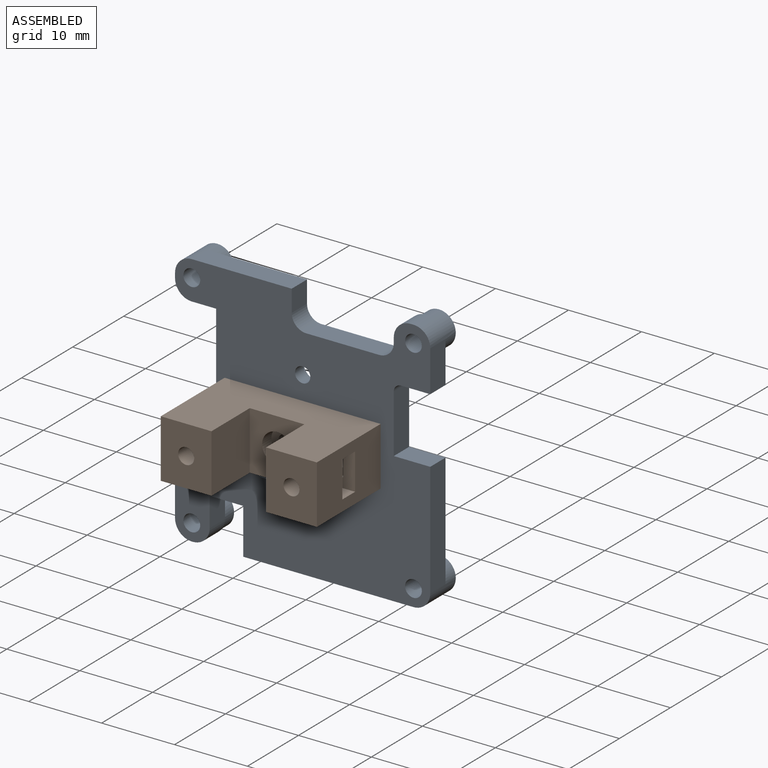
[diagram: assembled view]
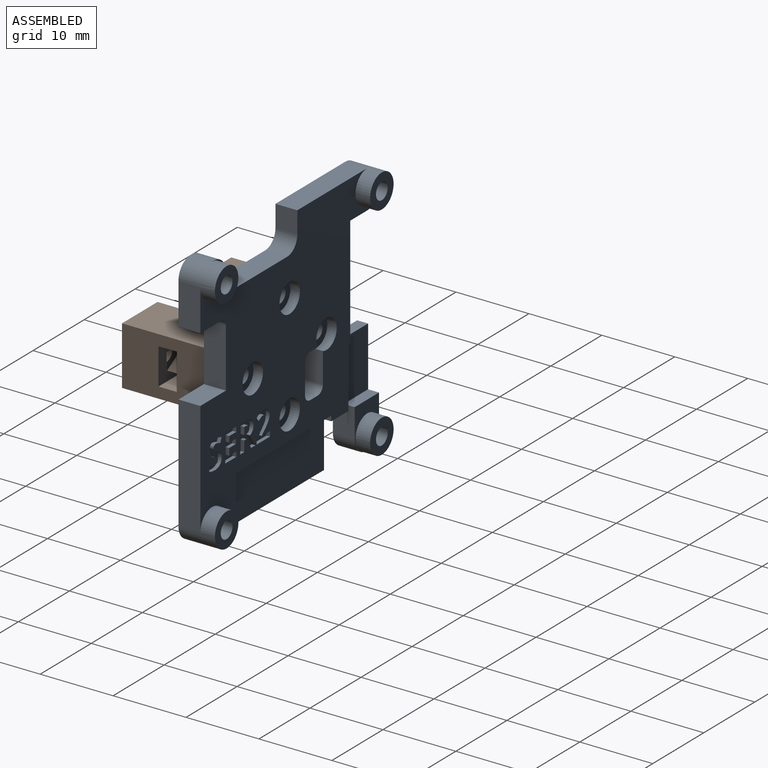
[diagram: assembled view, second angle]
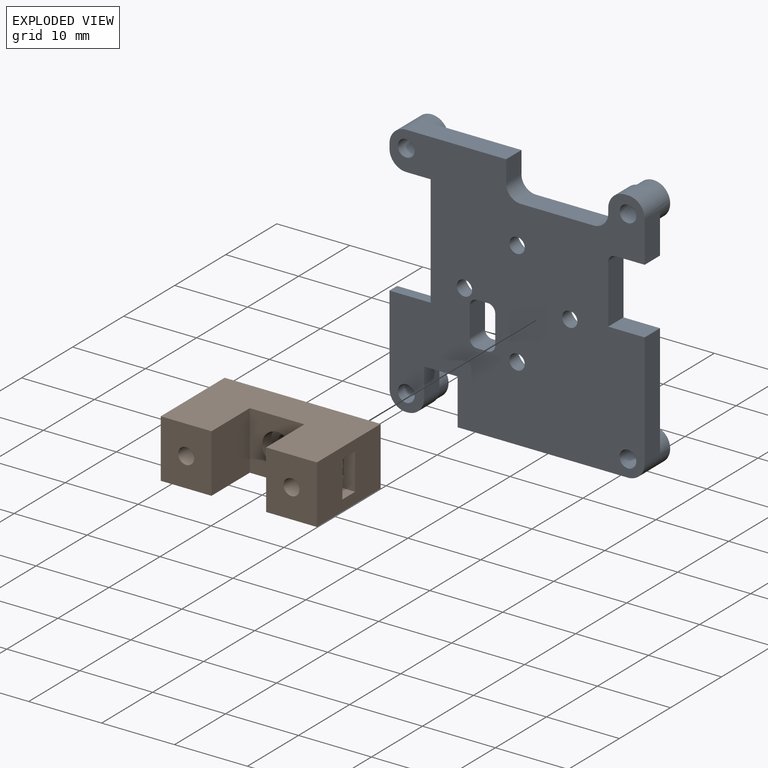
[diagram: exploded view]
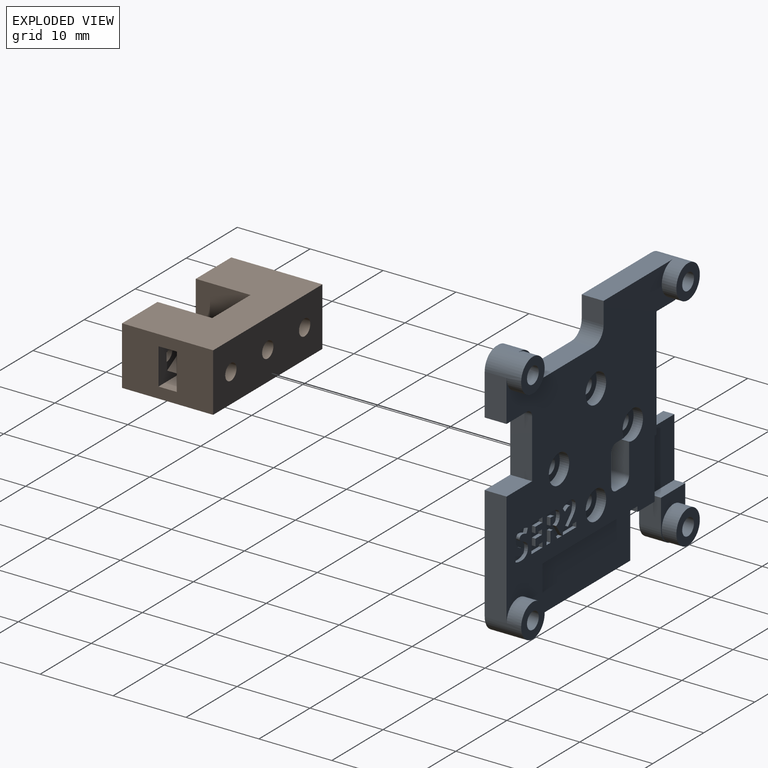
[diagram: exploded view, second angle]
ASSEMBLY  parts=2 mates=3
PART A: 157 faces, bbox 35x5x35 mm
  f0: plane 35x35mm, normal (0,1,0), area 637.7mm2, adj f1,f2,f6,f11,f12,f13,f14,f15
  f1: plane 5.7x3mm, normal (1,0,0), area 17.1mm2, adj f0,f3,f18,f53
  f2: plane 13.7x3mm, normal (0,0,1), area 41.1mm2, adj f0,f3,f20,f57
  f3: plane 35x35mm, normal (0,-1,0), area 938.1mm2, adj f1,f2,f5,f6,f7,f8,f9,f10
  f4: plane 6.3x4.75mm, normal (0,1,0), area 11mm2, adj f5,f8,f9,f27,f41,f64
  f5: plane 12.15x3mm, normal (-1,0,0), area 24.2mm2, adj f3,f4,f7,f27,f41,f42
  f6: plane 4.6x3mm, normal (0,0,-1), area 11.9mm2, adj f0,f3,f9,f10,f42,f44,f46
  f7: plane 5.64x1.5mm, normal (0,0,1), area 8.5mm2, adj f3,f5,f16,f42
  f8: plane 3x0.15mm, normal (0,0,-1), area 0.5mm2, adj f3,f4,f27,f64
  f9: plane 4x3mm, normal (1,0,0), area 12mm2, adj f3,f4,f6,f41,f64
  f10: plane 6.3x2mm, normal (-1,0,0), area 12.6mm2, adj f3,f6,f11,f45
  f11: plane 23.35x3mm, normal (0,0,-1), area 51.4mm2, adj f0,f3,f10,f23,f45,f47
  f12: plane 15.7x3mm, normal (1,0,0), area 47.1mm2, adj f0,f3,f23,f55
  f13: plane 3x0.4mm, normal (0,0,1), area 1.2mm2, adj f0,f3,f18,f62
  f14: plane 3x0.65mm, normal (-1,0,0), area 1.9mm2, adj f0,f3,f20,f63
  f15: plane 3.34x3mm, normal (0,0,-1), area 10mm2, adj f0,f3,f16,f63
  f16: plane 15.3x3mm, normal (-1,0,0), area 45.9mm2, adj f0,f3,f7,f15,f43
  f17: cylinder r=1.15mm len=5mm, axis (0,-1,0), area 36.1mm2, adj f3,f19
  f18: cylinder r=2.3mm len=5mm, axis (0,-1,0), area 39.7mm2, adj f0,f1,f3,f13,f19
  f19: plane 4.6x4.6mm, normal (0,1,0), area 12.5mm2, adj f17,f18
  f20: cylinder r=2.3mm len=5mm, axis (0,-1,0), area 39.7mm2, adj f0,f2,f3,f14,f22
  f21: cylinder r=1.15mm len=5mm, axis (0,-1,0), area 36.1mm2, adj f3,f22
  f22: plane 4.6x4.6mm, normal (0,1,0), area 12.5mm2, adj f20,f21
  f23: cylinder r=2.3mm len=5mm, axis (0,-1,0), area 39.7mm2, adj f0,f3,f11,f12,f25
  f24: cylinder r=1.15mm len=5mm, axis (0,-1,0), area 36.1mm2, adj f3,f25
  f25: plane 4.6x4.6mm, normal (0,1,0), area 12.5mm2, adj f23,f24
  f26: cylinder r=1.15mm len=5mm, axis (0,-1,0), area 36.1mm2, adj f3,f28
  f27: cylinder r=2.3mm len=5mm, axis (0,-1,0), area 39.7mm2, adj f3,f4,f5,f8,f28
  f28: plane 4.6x4.6mm, normal (0,1,0), area 12.5mm2, adj f26,f27
  f29: cylinder r=1.05mm len=2.1mm, axis (0,-1,0), area 11.2mm2, adj f3,f40
  f30: cylinder r=1.05mm len=2.1mm, axis (0,-1,0), area 11.2mm2, adj f3,f37
  f31: cylinder r=1.05mm len=2.1mm, axis (0,-1,0), area 11.2mm2, adj f3,f36
  f32: cylinder r=1.05mm len=2.1mm, axis (0,-1,0), area 11.2mm2, adj f3,f33
  f33: plane 4x4mm, normal (0,1,0), area 9.1mm2, adj f32,f34
  f34: cylinder r=2mm len=4mm, axis (0,1,0), area 16.3mm2, adj f0,f33
  f35: cylinder r=2mm len=4mm, axis (0,1,0), area 16.3mm2, adj f0,f36
  f36: plane 4x4mm, normal (0,1,0), area 9.1mm2, adj f31,f35
  f37: plane 4x4mm, normal (0,1,0), area 8.8mm2, adj f30,f38,f49,f65
  f38: cylinder r=2mm len=4mm, axis (0,1,0), area 14.6mm2, adj f0,f37,f49,f65
  f39: cylinder r=2mm len=4mm, axis (0,1,0), area 16.3mm2, adj f0,f40
  f40: plane 4x4mm, normal (0,1,0), area 9.1mm2, adj f29,f39
  f41: plane 4.75x1.5mm, normal (0,0,1), area 7.1mm2, adj f4,f5,f9,f42
  f42: plane 8.15x6mm, normal (0,1,0), area 48.9mm2, adj f5,f6,f7,f41,f43,f44
  f43: plane 1.5x0.36mm, normal (0,0,-1), area 0.5mm2, adj f0,f16,f42,f44
  f44: plane 8.15x1.5mm, normal (-1,0,0), area 12.2mm2, adj f0,f6,f42,f43
  f45: plane 18.65x7mm, normal (0,1,0), area 130.6mm2, adj f10,f11,f46,f47,f48
  f46: plane 1x0.7mm, normal (1,0,0), area 0.7mm2, adj f0,f6,f45,f48
  f47: plane 7x1mm, normal (-1,0,0), area 7mm2, adj f0,f11,f45,f48
  f48: plane 18.65x1mm, normal (0,0,-1), area 18.6mm2, adj f0,f45,f46,f47
  f49: plane 3x1.5mm, normal (0,0,-1), area 4.5mm2, adj f0,f3,f37,f38,f65,f68
  f50: plane 4x3mm, normal (1,0,0), area 12mm2, adj f0,f3,f65,f66
  f51: plane 3x1.5mm, normal (0,0,1), area 4.5mm2, adj f0,f3,f66,f67
  f52: plane 4x3mm, normal (-1,0,0), area 12mm2, adj f0,f3,f67,f68
  f53: plane 4x3mm, normal (0,0,-1), area 12mm2, adj f0,f1,f3,f59
  f54: plane 8x3mm, normal (1,0,0), area 24mm2, adj f0,f3,f55,f59
  f55: plane 5x3mm, normal (0,0,1), area 15mm2, adj f0,f3,f12,f54
  f56: plane 3x0.7mm, normal (-1,0,0), area 2.1mm2, adj f0,f3,f61,f62
  f57: plane 3x3mm, normal (1,0,0), area 9mm2, adj f0,f2,f3,f60
  f58: plane 10x3mm, normal (0,0,1), area 30mm2, adj f0,f3,f60,f61
  f59: cylinder r=1mm len=3mm, axis (0,-1,0), area 4.7mm2, adj f0,f3,f53,f54
  f60: cylinder r=2mm len=3mm, axis (0,1,0), area 9.4mm2, adj f0,f3,f57,f58
  f61: cylinder r=2mm len=3mm, axis (0,-1,0), area 9.4mm2, adj f0,f3,f56,f58
  f62: cylinder r=2.3mm len=3mm, axis (0,-1,0), area 10.8mm2, adj f0,f3,f13,f56
  f63: cylinder r=2.3mm len=3mm, axis (0,1,0), area 10.8mm2, adj f0,f3,f14,f15
  f64: cylinder r=2.3mm len=3mm, axis (0,1,0), area 10.8mm2, adj f3,f4,f8,f9
  f65: cylinder r=1mm len=3mm, axis (0,1,0), area 2.9mm2, adj f0,f3,f37,f38,f49,f50
  f66: cylinder r=1mm len=3mm, axis (0,-1,0), area 4.7mm2, adj f0,f3,f50,f51
  f67: cylinder r=1mm len=3mm, axis (0,1,0), area 4.7mm2, adj f0,f3,f51,f52
  f68: cylinder r=1mm len=3mm, axis (0,-1,0), area 4.7mm2, adj f0,f3,f49,f52
  f69: plane 2.16x0.5mm, normal (0,0,1), area 1.1mm2, adj f0,f70,f80,f81
  f70: plane 0.66x0.5mm, normal (1,0,0), area 0.3mm2, adj f0,f69,f71,f81
  f71: plane 1.37x0.5mm, normal (0,0,-1), area 0.7mm2, adj f0,f70,f72,f81
  f72: plane 0.97x0.5mm, normal (1,0,0), area 0.5mm2, adj f0,f71,f73,f81
  f73: plane 1.27x0.5mm, normal (0,0,1), area 0.6mm2, adj f0,f72,f74,f81
  f74: plane 0.65x0.5mm, normal (1,0,0), area 0.3mm2, adj f0,f73,f75,f81
  f75: plane 1.27x0.5mm, normal (0,0,-1), area 0.6mm2, adj f0,f74,f76,f81
  f76: plane 0.83x0.5mm, normal (1,0,0), area 0.4mm2, adj f0,f75,f77,f81
  f77: plane 1.37x0.5mm, normal (0,0,1), area 0.7mm2, adj f0,f76,f78,f81
  f78: plane 0.65x0.5mm, normal (1,0,0), area 0.3mm2, adj f0,f77,f79,f81
  f79: plane 2.16x0.5mm, normal (0,0,-1), area 1.1mm2, adj f0,f78,f80,f81
  f80: plane 3.76x0.5mm, normal (-1,0,0), area 1.9mm2, adj f0,f69,f79,f81
  f81: plane 3.76x2.16mm, normal (0,1,0), area 5.6mm2, adj f69,f70,f71,f72,f73,f74,f75,f76
  f82: plane 2.63x0.5mm, normal (0,0,1), area 1.3mm2, adj f0,f83,f105,f106
  f83: plane 0.67x0.5mm, normal (1,0,0), area 0.3mm2, adj f0,f82,f84,f106
  f84: plane 1.64x0.5mm, normal (0,0,-1), area 0.8mm2, adj f0,f83,f85,f106
  f85: plane 0.5x0.04mm, normal (1,0,0), area 0mm2, adj f0,f84,f86,f106
  f86: plane 0.5x0.48mm, normal (0.69,0,0.73), area 0.3mm2, adj f0,f85,f87,f106
  f87: extruded ~0.68x0.67mm, area 0.5mm2, adj f0,f86,f88,f106
  f88: extruded ~0.5x0.47mm, area 0.3mm2, adj f0,f87,f89,f106
  f89: extruded ~0.5x0.49mm, area 0.2mm2, adj f0,f88,f90,f106
  f90: extruded ~0.53x0.5mm, area 0.3mm2, adj f0,f89,f91,f106
  f91: extruded ~0.5x0.42mm, area 0.3mm2, adj f0,f90,f92,f106
  f92: extruded ~0.62x0.5mm, area 0.3mm2, adj f0,f91,f93,f106
  f93: extruded ~0.5x0.48mm, area 0.2mm2, adj f0,f92,f94,f106
  f94: extruded ~0.5x0.4mm, area 0.2mm2, adj f0,f93,f95,f106
  f95: extruded ~0.5x0.46mm, area 0.3mm2, adj f0,f94,f96,f106
  f96: plane 0.51x0.5mm, normal (-0.76,0,0.65), area 0.3mm2, adj f0,f95,f97,f106
  f97: extruded ~0.5x0.43mm, area 0.3mm2, adj f0,f96,f98,f106
  f98: extruded ~0.5x0.42mm, area 0.2mm2, adj f0,f97,f99,f106
  f99: extruded ~0.5x0.33mm, area 0.2mm2, adj f0,f98,f100,f106
  f100: extruded ~0.5x0.34mm, area 0.2mm2, adj f0,f99,f101,f106
  f101: extruded ~0.5x0.29mm, area 0.2mm2, adj f0,f100,f102,f106
  f102: extruded ~0.5x0.31mm, area 0.2mm2, adj f0,f101,f103,f106
  f103: extruded ~0.6x0.55mm, area 0.4mm2, adj f0,f102,f104,f106
  f104: plane 0.95x0.94mm, normal (-0.71,0,-0.7), area 0.7mm2, adj f0,f103,f105,f106
  f105: plane 0.55x0.5mm, normal (-1,0,0), area 0.3mm2, adj f0,f82,f104,f106
  f106: plane 3.81x2.64mm, normal (0,1,0), area 5.3mm2, adj f82,f83,f84,f85,f86,f87,f88,f89
  f107: plane 1.44x0.5mm, normal (1,0,0), area 0.7mm2, adj f0,f108,f125,f126
  f108: plane 0.5x0.42mm, normal (0,0,1), area 0.2mm2, adj f0,f107,f109,f126
  f109: plane 1.44x0.9mm, normal (-0.85,0,0.53), area 0.8mm2, adj f0,f108,f110,f126
  f110: plane 0.88x0.5mm, normal (0,0,1), area 0.4mm2, adj f0,f109,f111,f126
  f111: plane 1.64x1.11mm, normal (0.83,0,-0.56), area 1mm2, adj f0,f110,f112,f126
  f112: extruded ~0.52x0.5mm, area 0.3mm2, adj f0,f111,f113,f126
  f113: extruded ~0.59x0.5mm, area 0.3mm2, adj f0,f112,f114,f126
  f114: extruded ~0.85x0.5mm, area 0.5mm2, adj f0,f113,f115,f126
  f115: extruded ~1.13x0.5mm, area 0.6mm2, adj f0,f114,f116,f126
  f116: plane 1.09x0.5mm, normal (0,0,-1), area 0.5mm2, adj f0,f115,f117,f126
  f117: plane 3.76x0.5mm, normal (-1,0,0), area 1.9mm2, adj f0,f116,f125,f126
  f118: plane 0.5x0.26mm, normal (0,0,-1), area 0.1mm2, adj f119,f124,f126,f127
  f119: plane 1.02x0.5mm, normal (1,0,0), area 0.5mm2, adj f118,f120,f126,f127
  f120: plane 0.5x0.24mm, normal (0,0,1), area 0.1mm2, adj f119,f121,f126,f127
  f121: extruded ~0.57x0.5mm, area 0.3mm2, adj f120,f122,f126,f127
  f122: extruded ~0.5x0.38mm, area 0.2mm2, adj f121,f123,f126,f127
  f123: extruded ~0.5x0.4mm, area 0.2mm2, adj f122,f124,f126,f127
  f124: extruded ~0.56x0.5mm, area 0.3mm2, adj f118,f123,f126,f127
  f125: plane 0.8x0.5mm, normal (0,0,1), area 0.4mm2, adj f0,f107,f117,f126
  f126: plane 3.76x3mm, normal (0,1,0), area 6.9mm2, adj f107,f108,f109,f110,f111,f112,f113,f114
  f127: plane 1.02x0.99mm, normal (0,1,0), area 0.9mm2, adj f118,f119,f120,f121,f122,f123,f124
  f128: extruded ~0.8x0.5mm, area 0.5mm2, adj f0,f129,f155,f156
  f129: extruded ~0.62x0.5mm, area 0.3mm2, adj f0,f128,f130,f156
  f130: extruded ~0.72x0.51mm, area 0.4mm2, adj f0,f129,f131,f156
  f131: extruded ~0.5x0.5mm, area 0.3mm2, adj f0,f130,f132,f156
  f132: extruded ~0.5x0.16mm, area 0.1mm2, adj f0,f131,f133,f156
  f133: extruded ~0.5x0.18mm, area 0.1mm2, adj f0,f132,f134,f156
  f134: extruded ~0.5x0.27mm, area 0.2mm2, adj f0,f133,f135,f156
  f135: extruded ~0.5x0.35mm, area 0.2mm2, adj f0,f134,f136,f156
  f136: extruded ~0.5x0.39mm, area 0.2mm2, adj f0,f135,f137,f156
  f137: extruded ~0.5x0.5mm, area 0.3mm2, adj f0,f136,f138,f156
  f138: plane 0.62x0.5mm, normal (0.92,0,0.38), area 0.3mm2, adj f0,f137,f139,f156
  f139: extruded ~0.56x0.5mm, area 0.3mm2, adj f0,f138,f140,f156
  f140: extruded ~0.56x0.5mm, area 0.3mm2, adj f0,f139,f141,f156
  f141: extruded ~0.93x0.5mm, area 0.5mm2, adj f0,f140,f142,f156
  f142: extruded ~0.78x0.5mm, area 0.4mm2, adj f0,f141,f143,f156
  f143: extruded ~0.5x0.46mm, area 0.2mm2, adj f0,f142,f144,f156
  f144: extruded ~0.5x0.35mm, area 0.2mm2, adj f0,f143,f145,f156
  f145: extruded ~0.52x0.5mm, area 0.3mm2, adj f0,f144,f146,f156
  f146: extruded ~0.5x0.49mm, area 0.3mm2, adj f0,f145,f147,f156
  f147: extruded ~0.5x0.18mm, area 0.1mm2, adj f0,f146,f148,f156
  f148: extruded ~0.5x0.2mm, area 0.1mm2, adj f0,f147,f149,f156
  f149: extruded ~0.5x0.3mm, area 0.2mm2, adj f0,f148,f150,f156
  f150: extruded ~0.5x0.4mm, area 0.2mm2, adj f0,f149,f151,f156
  f151: extruded ~0.5x0.48mm, area 0.2mm2, adj f0,f150,f152,f156
  f152: extruded ~0.64x0.5mm, area 0.3mm2, adj f0,f151,f153,f156
  f153: plane 0.74x0.5mm, normal (-1,0,0), area 0.4mm2, adj f0,f152,f154,f156
  f154: extruded ~1.06x0.5mm, area 0.5mm2, adj f0,f153,f155,f156
  f155: extruded ~1.02x0.5mm, area 0.5mm2, adj f0,f128,f154,f156
  f156: plane 3.86x2.45mm, normal (0,1,0), area 5.3mm2, adj f128,f129,f130,f131,f132,f133,f134,f135
PART B: 51 faces, bbox 12.5x8x21.4 mm
  f0: cylinder r=1.1mm len=3.2mm, axis (1,0,0), area 22.1mm2, adj f9,f49
  f1: cylinder r=1.1mm len=3.7mm, axis (1,0,0), area 25.6mm2, adj f9,f42
  f2: cylinder r=1.1mm len=3.7mm, axis (1,0,0), area 25.6mm2, adj f9,f48
  f3: plane 5.45x5mm, normal (1,0,0), area 14.5mm2, adj f24,f32,f34,f35,f37,f38,f39,f40
  f4: plane 1.92x1.3mm, normal (0,0.87,0.5), area 2.9mm2, adj f5,f8,f33,f36
  f5: plane 2.21x1.3mm, normal (0,0,1), area 2.9mm2, adj f4,f6,f33,f36
  f6: plane 1.92x1.3mm, normal (0,-0.87,0.5), area 2.9mm2, adj f5,f7,f33,f36
  f7: plane 1.92x1.3mm, normal (0,-0.87,-0.5), area 2.9mm2, adj f6,f32,f33,f36
  f8: plane 1.92x1.3mm, normal (0,0.87,-0.5), area 2.9mm2, adj f4,f32,f33,f36
  f9: plane 21.4x8mm, normal (-1,0,0), area 159.8mm2, adj f0,f1,f2,f21,f24,f28,f29
  f10: plane 1.92x1.3mm, normal (0,-0.87,0.5), area 2.9mm2, adj f11,f15,f16,f17
  f11: plane 1.92x1.3mm, normal (0,-0.87,-0.5), area 2.9mm2, adj f10,f12,f16,f17
  f12: plane 2.21x1.3mm, normal (0,0,-1), area 2.9mm2, adj f11,f13,f16,f17
  f13: plane 1.92x1.3mm, normal (0,0.87,-0.5), area 2.9mm2, adj f12,f14,f16,f17
  f14: plane 1.92x1.3mm, normal (0,0.87,0.5), area 2.9mm2, adj f13,f15,f16,f17
  f15: plane 5.1x5mm, normal (0,0,1), area 18.2mm2, adj f10,f14,f16,f17,f18,f19,f20,f43
  f16: plane 4.42x3.83mm, normal (-1,0,0), area 8.9mm2, adj f10,f11,f12,f13,f14,f15,f31
  f17: plane 5.45x5mm, normal (-1,0,0), area 14.5mm2, adj f10,f11,f12,f13,f14,f15,f18,f20
  f18: plane 5.45x2.5mm, normal (0,-1,0), area 13.6mm2, adj f15,f17,f19,f21
  f19: plane 5.45x5mm, normal (1,0,0), area 14.5mm2, adj f15,f18,f20,f21,f43,f44,f45,f46
  f20: plane 5.45x2.5mm, normal (0,1,0), area 13.6mm2, adj f15,f17,f19,f21
  f21: plane 12.5x8mm, normal (0,0,1), area 87.5mm2, adj f9,f17,f18,f19,f20,f23,f28,f29
  f22: plane 8x7.5mm, normal (0,0,-1), area 60mm2, adj f23,f27,f28,f29
  f23: plane 8x6.95mm, normal (1,0,0), area 51.8mm2, adj f21,f22,f28,f29,f31
  f24: plane 12.5x8mm, normal (0,0,-1), area 87.5mm2, adj f3,f9,f25,f28,f29,f34,f35,f36
  f25: plane 8x6.95mm, normal (1,0,0), area 51.8mm2, adj f24,f26,f28,f29,f30
  f26: plane 8x7.5mm, normal (0,0,1), area 60mm2, adj f25,f27,f28,f29
  f27: plane 8x7.5mm, normal (1,0,0), area 46.8mm2, adj f22,f26,f28,f29,f50
  f28: plane 21.4x12.5mm, normal (0,-1,0), area 211.2mm2, adj f9,f21,f22,f23,f24,f25,f26,f27
  f29: plane 21.4x12.5mm, normal (0,1,0), area 211.3mm2, adj f9,f21,f22,f23,f24,f25,f26,f27
  f30: cylinder r=1.1mm len=3.7mm, axis (1,0,0), area 25.6mm2, adj f25,f33
  f31: cylinder r=1.1mm len=3.7mm, axis (1,0,0), area 25.6mm2, adj f16,f23
  f32: plane 5.1x5mm, normal (0,0,-1), area 18.2mm2, adj f3,f7,f8,f33,f34,f35,f36,f40
  f33: plane 4.42x3.83mm, normal (-1,0,0), area 8.9mm2, adj f4,f5,f6,f7,f8,f30,f32
  f34: plane 5.45x2.5mm, normal (0,1,0), area 13.6mm2, adj f3,f24,f32,f36
  f35: plane 5.45x2.5mm, normal (0,-1,0), area 13.6mm2, adj f3,f24,f32,f36
  f36: plane 5.45x5mm, normal (-1,0,0), area 14.5mm2, adj f4,f5,f6,f7,f8,f24,f32,f34
  f37: plane 1.92x1.3mm, normal (0,0.87,0.5), area 2.9mm2, adj f3,f38,f41,f42
  f38: plane 2.21x1.3mm, normal (0,0,1), area 2.9mm2, adj f3,f37,f39,f42
  f39: plane 1.92x1.3mm, normal (0,-0.87,0.5), area 2.9mm2, adj f3,f38,f40,f42
  f40: plane 1.92x1.3mm, normal (0,-0.87,-0.5), area 2.9mm2, adj f3,f32,f39,f42
  f41: plane 1.92x1.3mm, normal (0,0.87,-0.5), area 2.9mm2, adj f3,f32,f37,f42
  f42: plane 4.42x3.83mm, normal (1,0,0), area 8.9mm2, adj f1,f32,f37,f38,f39,f40,f41
  f43: plane 1.92x1.3mm, normal (0,-0.87,0.5), area 2.9mm2, adj f15,f19,f44,f48
  f44: plane 1.92x1.3mm, normal (0,-0.87,-0.5), area 2.9mm2, adj f19,f43,f45,f48
  f45: plane 2.21x1.3mm, normal (0,0,-1), area 2.9mm2, adj f19,f44,f46,f48
  f46: plane 1.92x1.3mm, normal (0,0.87,-0.5), area 2.9mm2, adj f19,f45,f47,f48
  f47: plane 1.92x1.3mm, normal (0,0.87,0.5), area 2.9mm2, adj f15,f19,f46,f48
  f48: plane 4.42x3.83mm, normal (1,0,0), area 8.9mm2, adj f2,f15,f43,f44,f45,f46,f47
  f49: plane 4.1x4.1mm, normal (1,0,0), area 9.4mm2, adj f0,f50
  f50: cylinder r=2.05mm len=4.1mm, axis (1,0,0), area 23.2mm2, adj f27,f49
PLACE A t=(-3.21,6.96,8.3)mm
PLACE B rot(axis=(0.58,-0.58,-0.58),120deg) t=(-3.21,-8.54,8.3)mm
MATE cylindrical B.f1 <-> A.f29  axis (0,-1,0) through (4.02,3.96,8.3)mm
MATE parallel B.f24 <-> A.f1  axis (1,0,0) through (7.49,-8.54,8.3)mm
MATE planar B.f0 <-> A.f3  axis (0,1,0) through (-3.21,3.96,8.3)mm
